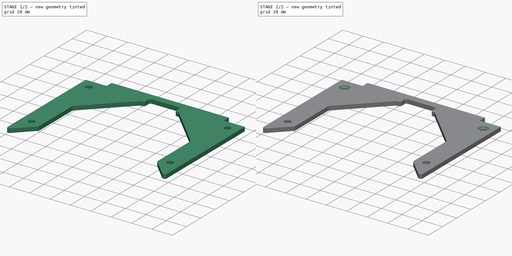
[diagram: build sequence overview — one tinted view per stage of 2, left to right]
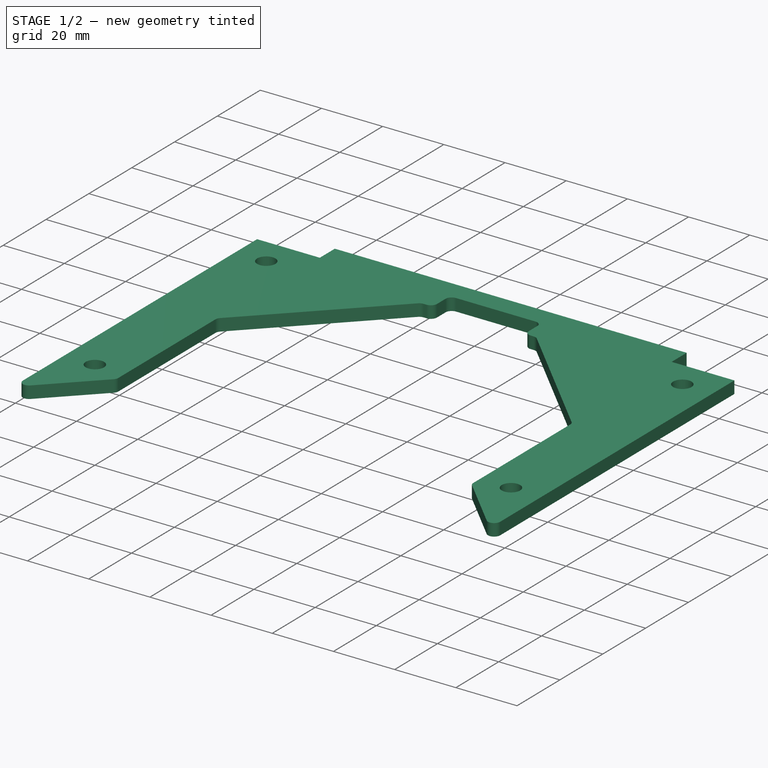
[diagram: stage 1 of 2 — iso view after this stage's code; geometry added in this stage tinted green]
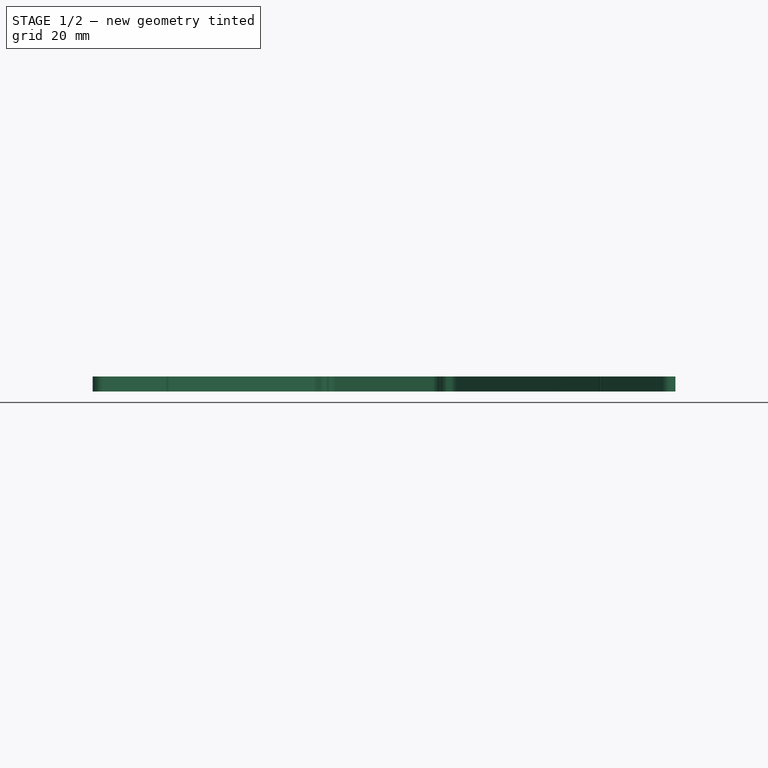
[diagram: stage 1 of 2 — front view after this stage's code; geometry added in this stage tinted green]
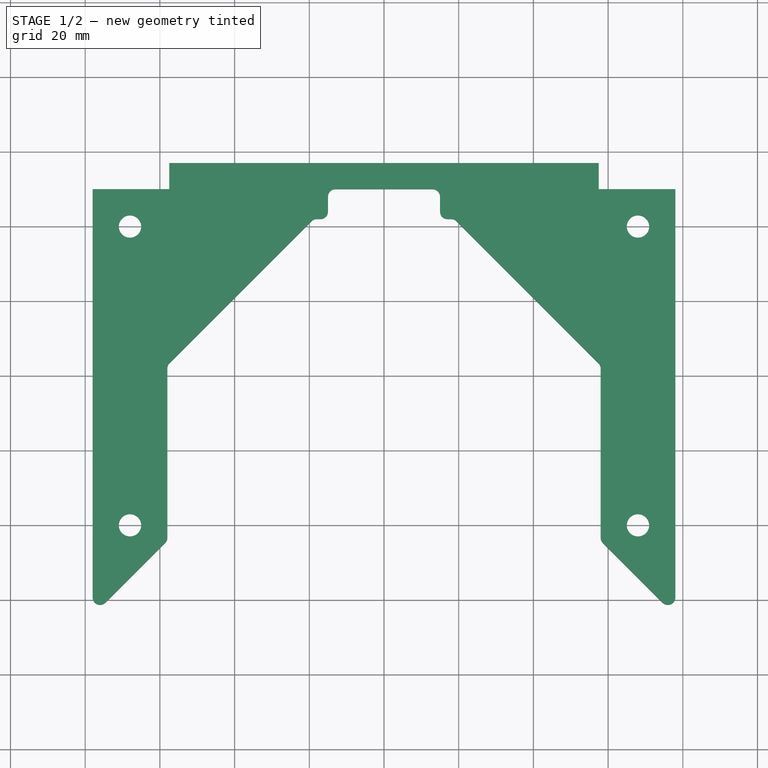
[diagram: stage 1 of 2 — top view after this stage's code; geometry added in this stage tinted green]
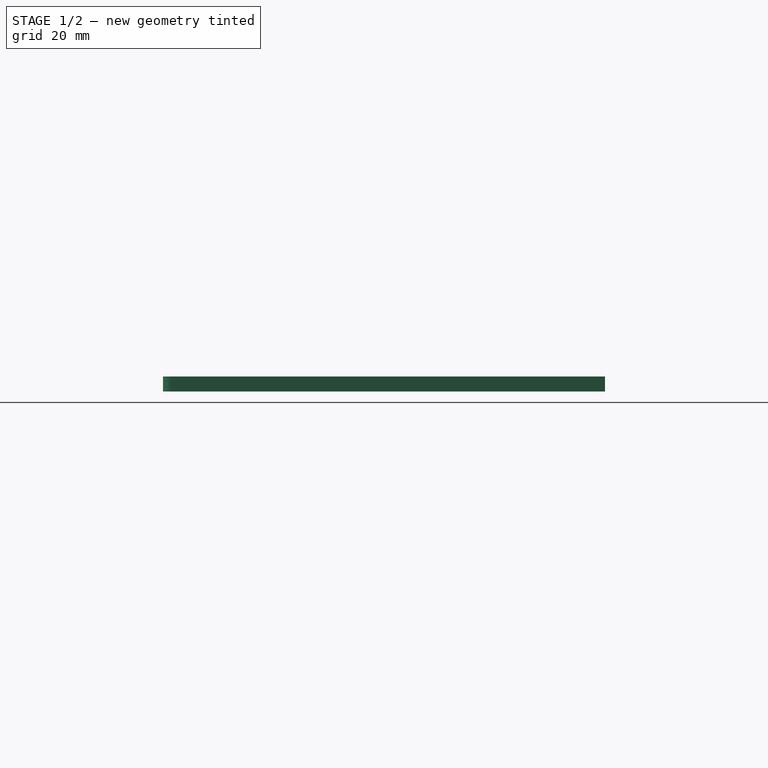
[diagram: stage 1 of 2 — right view after this stage's code; geometry added in this stage tinted green]
FCSTD DOCUMENT  (FreeCAD 0.19R24267 +99 (Git))
Label: V2 Enclosure middle U bracket slotted panel with cable notch
License: All rights reserved
LicenseURL: http://en.wikipedia.org/wiki/All_rights_reserved
objects: Sketcher::SketchObject×1, PartDesign::Pad×1, PartDesign::Chamfer×1, PartDesign::Body×1
note: 6 computed .brp shape members not serialized (recipe doc carries the construction recipe); baked Part::Feature solids carry a one-line shape summary decoded from their .brp

FEATURE [Sketcher::SketchObject] Sketch
  FullyConstrained = true
  MapMode = 5
  Support = -> [XY_Plane]
  sketch-geometry (44):
    g0: LineSegment StartX=-68 StartY=0 StartZ=0 EndX=-68 EndY=-114.142 EndZ=0
    g1: Circle CenterX=-68 CenterY=-20 CenterZ=0 NormalX=0 NormalY=0 NormalZ=1 AngleXU=0 Radius=3
    g2: Circle CenterX=-68 CenterY=-100 CenterZ=0 NormalX=0 NormalY=0 NormalZ=1 AngleXU=0 Radius=3
    g3: LineSegment StartX=68 StartY=0 StartZ=0 EndX=68 EndY=-114.142 EndZ=0
    g4: Circle CenterX=68 CenterY=-20 CenterZ=0 NormalX=0 NormalY=0 NormalZ=1 AngleXU=0 Radius=3
    g5: Circle CenterX=68 CenterY=-100 CenterZ=0 NormalX=0 NormalY=0 NormalZ=1 AngleXU=0 Radius=3
    g6: LineSegment StartX=-78 StartY=-10 StartZ=0 EndX=-78 EndY=-119.314 EndZ=0
    g7: LineSegment StartX=-58 StartY=-58 StartZ=0 EndX=-58 EndY=-103.314 EndZ=0
    g8: LineSegment StartX=-57.4142 StartY=-56.5858 StartZ=0 EndX=-19.4142 EndY=-18.5858 EndZ=0
    g9: LineSegment StartX=19.4142 StartY=-18.5858 StartZ=0 EndX=57.4142 EndY=-56.5858 EndZ=0
    g10: LineSegment StartX=58 StartY=-58 StartZ=0 EndX=58 EndY=-103.314 EndZ=0
    g11: LineSegment StartX=58.5858 StartY=-104.728 StartZ=0 EndX=74.5858 EndY=-120.728 EndZ=0
    g12: LineSegment StartX=78 StartY=-119.314 StartZ=0 EndX=78 EndY=-10 EndZ=0
    g13: LineSegment StartX=57.5 StartY=10 StartZ=0 EndX=-57.5 EndY=10 EndZ=0
    g14: LineSegment StartX=-74.5858 StartY=-120.728 StartZ=0 EndX=-58.5858 EndY=-104.728 EndZ=0
    g15: ArcOfCircle CenterX=-76 CenterY=-119.314 CenterZ=0 NormalX=0 NormalY=0 NormalZ=1 AngleXU=0 Radius=2 StartAngle=3.14159 EndAngle=5.49779
    g16: ArcOfCircle CenterX=-60 CenterY=-103.314 CenterZ=0 NormalX=0 NormalY=0 NormalZ=1 AngleXU=0 Radius=2 StartAngle=5.49779 EndAngle=6.28319
    g17: ArcOfCircle CenterX=60 CenterY=-103.314 CenterZ=0 NormalX=0 NormalY=0 NormalZ=1 AngleXU=0 Radius=2 StartAngle=3.14159 EndAngle=3.92699
    g18: ArcOfCircle CenterX=76 CenterY=-119.314 CenterZ=0 NormalX=0 NormalY=0 NormalZ=1 AngleXU=0 Radius=2 StartAngle=3.92699 EndAngle=6.28319
    g19: ArcOfCircle CenterX=-56 CenterY=-58 CenterZ=0 NormalX=0 NormalY=0 NormalZ=1 AngleXU=0 Radius=2 StartAngle=2.35619 EndAngle=3.14159
    g20: ArcOfCircle CenterX=-18 CenterY=-20 CenterZ=0 NormalX=0 NormalY=0 NormalZ=1 AngleXU=0 Radius=2 StartAngle=1.5708 EndAngle=2.35619
    g21: ArcOfCircle CenterX=18 CenterY=-20 CenterZ=0 NormalX=0 NormalY=0 NormalZ=1 AngleXU=0 Radius=2 StartAngle=0.785398 EndAngle=1.5708
    g22: ArcOfCircle CenterX=56 CenterY=-58 CenterZ=0 NormalX=0 NormalY=0 NormalZ=1 AngleXU=0 Radius=2 StartAngle=-1.8e-15 EndAngle=0.785398
    g23: Circle CenterX=-68 CenterY=-100 CenterZ=0 NormalX=0 NormalY=0 NormalZ=1 AngleXU=0 Radius=10
    g24: Circle CenterX=68 CenterY=-100 CenterZ=0 NormalX=0 NormalY=0 NormalZ=1 AngleXU=0 Radius=10
    g25: GeomPoint X=0 Y=-10 Z=0
    g26: GeomPoint X=0 Y=10 Z=0
    g27: LineSegment StartX=-78 StartY=-10 StartZ=0 EndX=-57.5 EndY=-10 EndZ=0
    g28: LineSegment StartX=57.5 StartY=-10 StartZ=0 EndX=78 EndY=-10 EndZ=0
    g29: LineSegment StartX=-57.5 StartY=-10 StartZ=0 EndX=-57.5 EndY=-3 EndZ=0
    g30: LineSegment StartX=-57.5 StartY=-3 StartZ=0 EndX=-57.5 EndY=10 EndZ=0
    g31: LineSegment StartX=57.5 StartY=10 StartZ=0 EndX=57.5 EndY=-3 EndZ=0
    g32: LineSegment StartX=57.5 StartY=-3 StartZ=0 EndX=57.5 EndY=-10 EndZ=0
    g33: LineSegment StartX=57.5 StartY=-3 StartZ=0 EndX=-57.5 EndY=-3 EndZ=0
    g34: LineSegment StartX=-18 StartY=-18 StartZ=0 EndX=-17 EndY=-18 EndZ=0
    g35: LineSegment StartX=15 StartY=-16 StartZ=0 EndX=15 EndY=-12 EndZ=0
    g36: LineSegment StartX=-15 StartY=-16 StartZ=0 EndX=-15 EndY=-12 EndZ=0
    g37: LineSegment StartX=-13 StartY=-10 StartZ=0 EndX=13 EndY=-10 EndZ=0
    g38: ArcOfCircle CenterX=-17 CenterY=-16 CenterZ=0 NormalX=0 NormalY=0 NormalZ=1 AngleXU=0 Radius=2 StartAngle=4.71239 EndAngle=6.28319
    g39: LineSegment StartX=17 StartY=-18 StartZ=0 EndX=18 EndY=-18 EndZ=0
    g40: ArcOfCircle CenterX=17 CenterY=-16 CenterZ=0 NormalX=0 NormalY=0 NormalZ=1 AngleXU=0 Radius=2 StartAngle=3.14159 EndAngle=4.71239
    g41: LineSegment StartX=-17 StartY=-18 StartZ=0 EndX=17 EndY=-18 EndZ=0
    g42: ArcOfCircle CenterX=-13 CenterY=-12 CenterZ=0 NormalX=0 NormalY=0 NormalZ=1 AngleXU=0 Radius=2 StartAngle=1.5708 EndAngle=3.14159
    g43: ArcOfCircle CenterX=13 CenterY=-12 CenterZ=0 NormalX=0 NormalY=0 NormalZ=1 AngleXU=0 Radius=2 StartAngle=4e-16 EndAngle=1.5708
  constraints (107):
    c: Vertical(g0)
    c: PointOnObject(g1,g0)
    c: PointOnObject(g2,g0)
    c: Vertical(g3)
    c: Symmetric(g1,g4,g-2)
    c: Symmetric(g2,g5,g-2)
    c: Equal(g2,g1)
    c: Equal(g1,g4)
    c: Equal(g4,g5)
    c: Radius(g1) = 3
    c: Vertical(g6)
    c: Vertical(g7)
    c: Vertical(g12)
    c: Horizontal(g13)
    c: Tangent(g6,g15) = -1.5708
    c: Tangent(g14,g15) = -1.5708
    c: Tangent(g7,g16) = 1.5708
    c: Tangent(g14,g16) = -1.5708
    c: Tangent(g10,g17) = -1.5708
    c: Tangent(g11,g17) = -1.5708
    c: Tangent(g12,g18) = -1.5708
    c: Tangent(g11,g18) = -1.5708
    c: Tangent(g8,g19) = 1.5708
    c: Tangent(g7,g19) = -1.5708
    c: Tangent(g8,g20) = 1.5708
    c: Tangent(g9,g21) = 1.5708
    c: Tangent(g9,g22) = 1.5708
    c: Tangent(g10,g22) = 1.5708
    c: Equal(g19,g20)
    c: Equal(g21,g22)
    c: Equal(g22,g18)
    c: Equal(g18,g17)
    c: Equal(g17,g15)
    c: Equal(g15,g16)
    c: PointOnObject(g0,g14)
    c: PointOnObject(g3,g11)
    c: Coincident(g23,g2)
    c: Coincident(g24,g5)
    c: Tangent(g24,g12)
    c: Tangent(g24,g11)
    c: Tangent(g10,g24)
    c: Tangent(g6,g23)
    c: Angle(g14,g6) = 0.785398
    c: Symmetric(g7,g10,g-2)
    c: DistanceX(g6,g7) = 20
    c: Symmetric(g6,g12,g-2)
    c: Symmetric(g7,g10,g-2)
    c: PointOnObject(g25,g-2)
    c: PointOnObject(g26,g13)
    c: Symmetric(g26,g25,g-1)
    c: DistanceY(g25,g26) = 20
    c: DistanceX(g0,g3) = 136
    c: DistanceY(g1,g0) = 20
    c: DistanceY(g2,g0) = 100
    c: PointOnObject(g0,g-1)
    c: Horizontal(g27)
    c: Horizontal(g28)
    c: Coincident(g6,g27)
    c: Coincident(g12,g28)
    c: Equal(g20,g15)
    c: Radius(g20) = 2
    c: DistanceX(g27,g27) = 20.5
    c: Symmetric(g0,g3,g-1)
    c: Coincident(g29,g27)
    c: Coincident(g30,g29)
    c: Coincident(g30,g13)
    c: Vertical(g30)
    c: Coincident(g31,g13)
    c: Vertical(g31)
    c: Coincident(g32,g31)
    c: Coincident(g32,g28)
    c: Vertical(g32)
    c: Coincident(g33,g31)
    c: Coincident(g33,g29)
    c: Horizontal(g33)
    c: Vertical(g29)
    c: Symmetric(g27,g28,g-2)
    c: DistanceY(g6,g13) = 20
    c: DistanceY(g32,g32) = 7
    c: Tangent(g20,g34) = 1.5708
    c: Symmetric(g20,g21,g-2)
    c: DistanceY(g21,g32) = 15
    c: DistanceY(g7,g20) = 40
    c: DistanceX(g7,g20) = 40
    c: Vertical(g35)
    c: Vertical(g36)
    c: Horizontal(g37)
    c: PointOnObject(g25,g37)
    c: Tangent(g34,g38) = -1.5708
    c: Tangent(g36,g38) = -1.5708
    c: Horizontal(g39)
    c: Tangent(g39,g40) = -1.5708
    c: Tangent(g35,g40) = 1.5708
    c: Coincident(g41,g34)
    c: Coincident(g41,g39)
    c: Tangent(g36,g42) = 1.5708
    c: Tangent(g37,g42) = 1.5708
    c: Tangent(g37,g43) = 1.5708
    c: Tangent(g35,g43) = -1.5708
    c: Equal(g38,g42)
    c: Equal(g42,g43)
    c: Equal(g43,g40)
    c: Radius(g43) = 2
    c: Symmetric(g34,g39,g-2)
    c: DistanceX(g36,g35) = 30
    c: Tangent(g39,g21) = 1.5708
    c: DistanceY(g39,g37) = 8
FEATURE [PartDesign::Pad] Pad
  Direction = (1,1,1)
  Length = 4
  Length2 = 100
  Profile = -> Sketch
  Type = 0
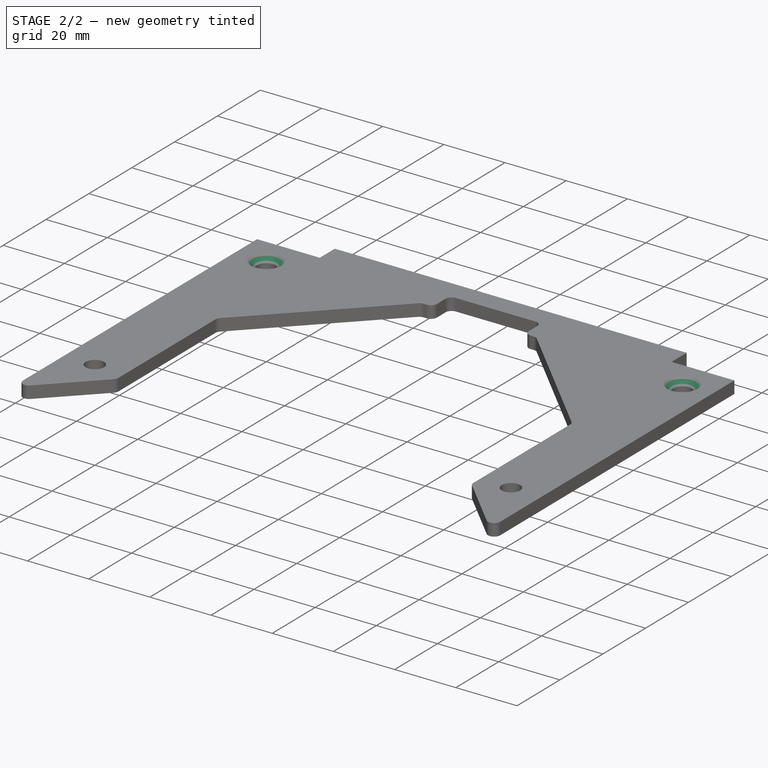
[diagram: stage 2 of 2 — iso view after this stage's code; geometry added in this stage tinted green]
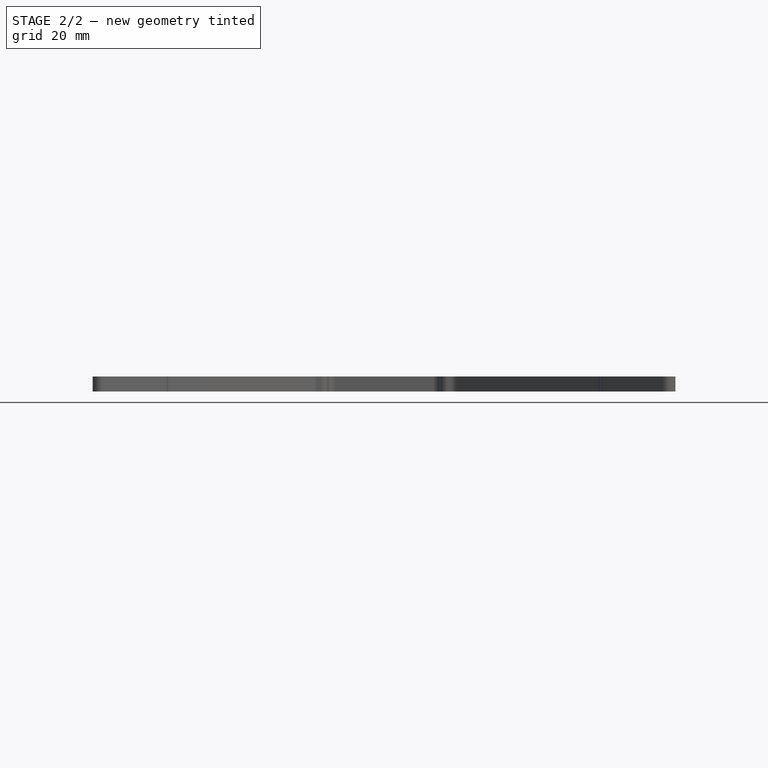
[diagram: stage 2 of 2 — front view after this stage's code; geometry added in this stage tinted green]
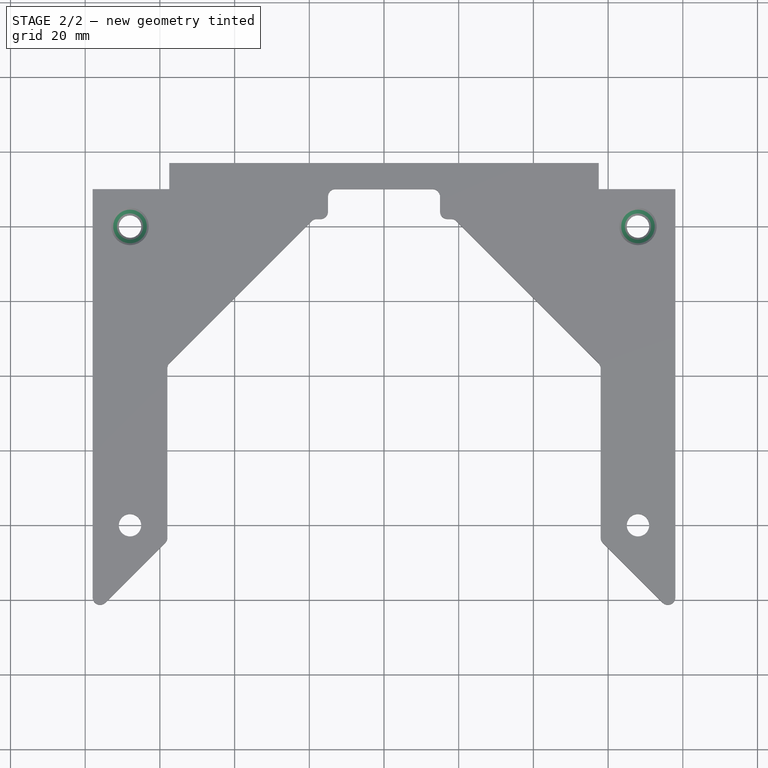
[diagram: stage 2 of 2 — top view after this stage's code; geometry added in this stage tinted green]
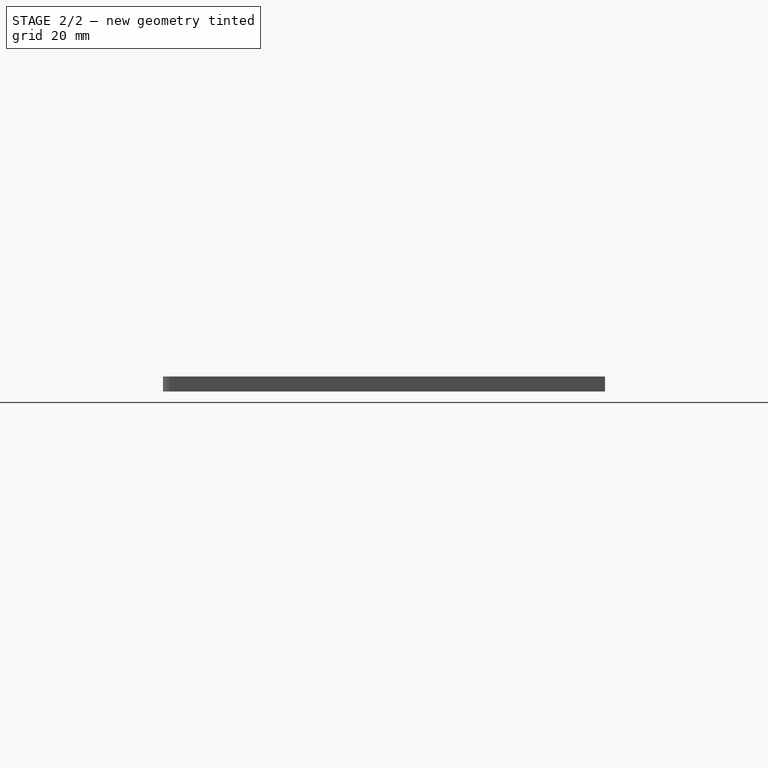
[diagram: stage 2 of 2 — right view after this stage's code; geometry added in this stage tinted green]
FEATURE [PartDesign::Chamfer] Chamfer  label="M5 countersinks"
  Angle = 45
  Base = -> Pad [Edge102,Edge96]
  BaseFeature = -> Pad
  ChamferType = 0
  FlipDirection = false
  Size = 2
  Size2 = 1
  SupportTransform = false
FEATURE [PartDesign::Body] Body
  Group = -> [Sketch,Pad,Chamfer]
  Origin = -> Origin
  Tip = -> Chamfer
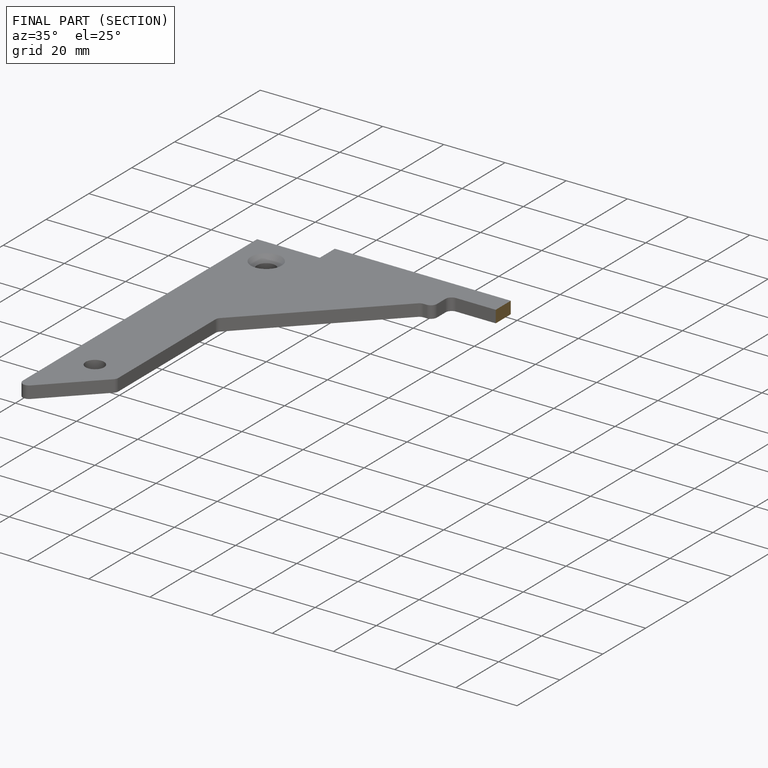
[diagram: finished part — half-section view (interior)]
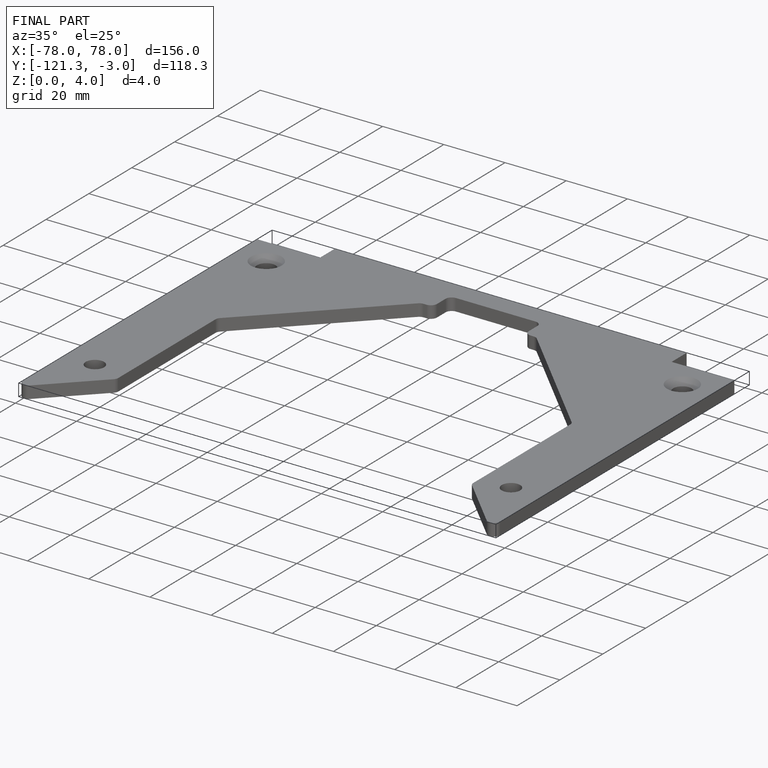
[diagram: finished part — iso view with bounding-box wireframe]
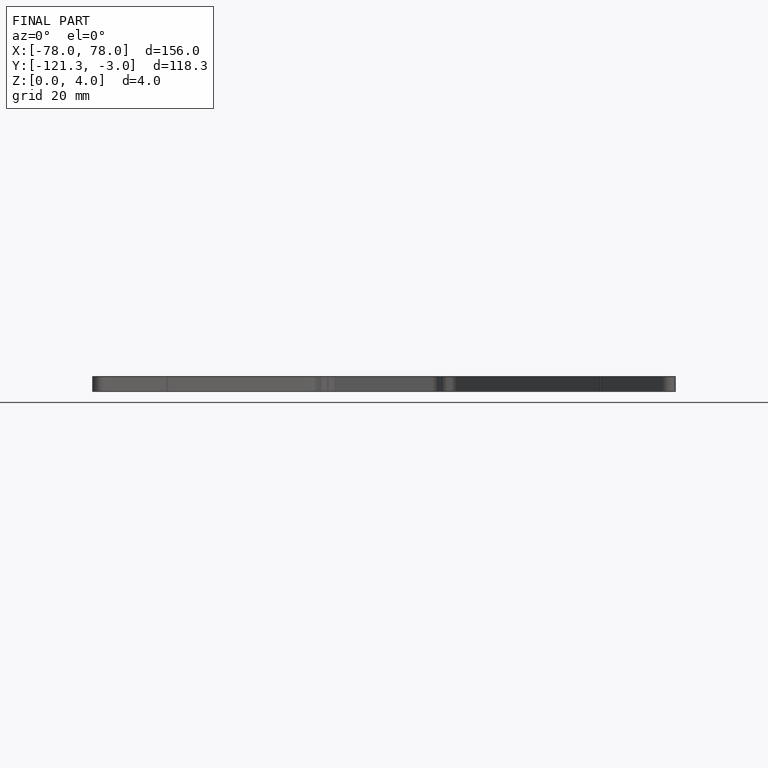
[diagram: finished part — front view with bounding-box wireframe]
